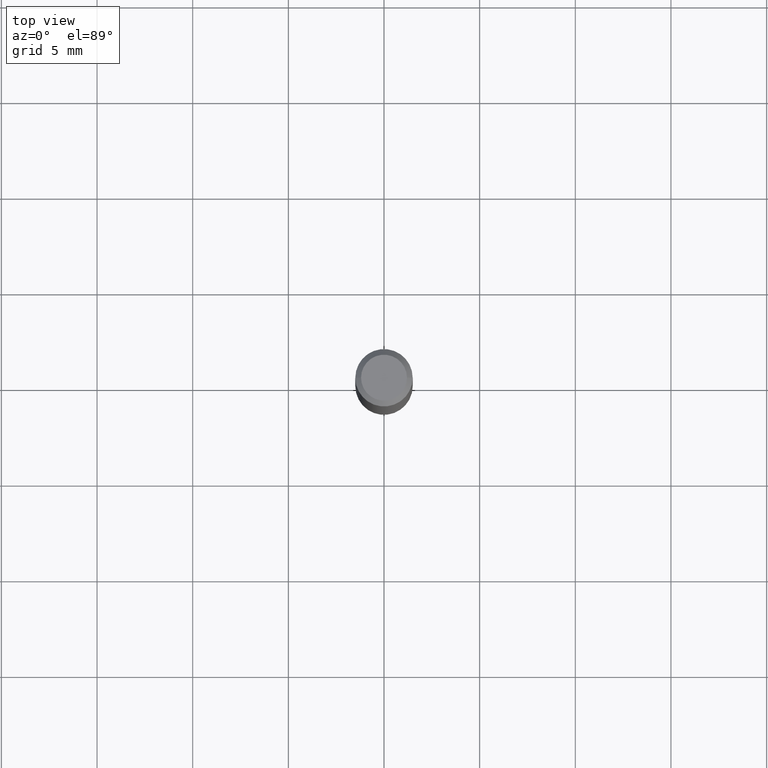
[diagram: clean part render]
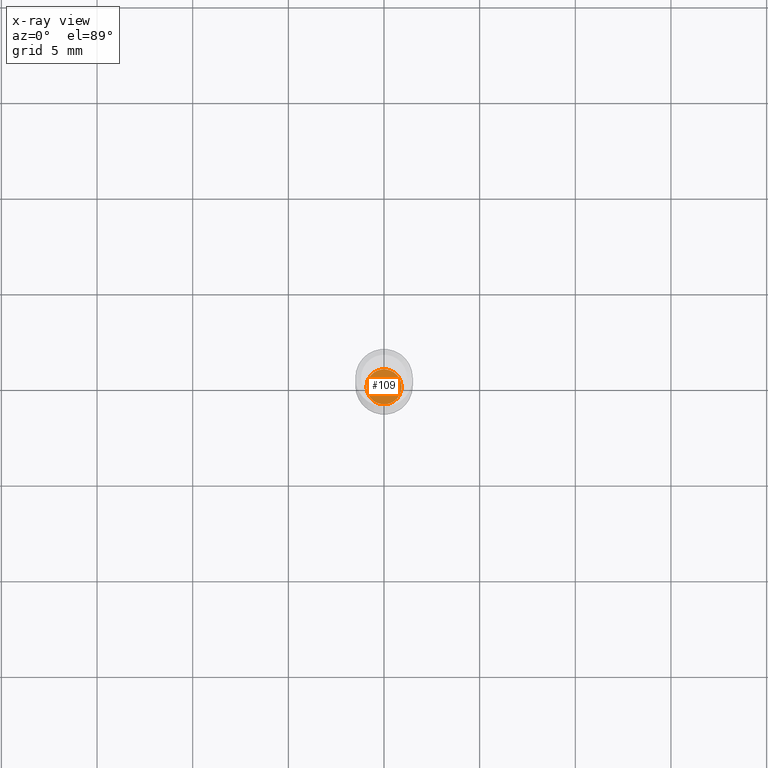
[diagram: x-ray — body ghosted, one internal face saturated and labeled with its STEP entity id]
A machine part, top view, then the same camera in x-ray: the body is ghosted and one INTERNAL B-rep face — a face not visible from any outside direction — is saturated and labeled: STEP entity #109.
In plain terms, the highlighted planar face has unit normal (-0, 0, 1).
Its self-contained STEP definition (entity closure, byte-faithful):
#5 = EDGE_CURVE ( 'NONE', #305, #262, #199, .T. ) ;
#48 = AXIS2_PLACEMENT_3D ( 'NONE', #98, #243, #401 ) ;
#51 = CARTESIAN_POINT ( 'NONE',  ( 0.03610000000000000014, -4.073511278028297355E-15, -1.094499999999999806 ) ) ;
#64 = EDGE_CURVE ( 'NONE', #262, #305, #267, .T. ) ;
#66 = FACE_OUTER_BOUND ( 'NONE', #142, .T. ) ;
#69 = DIRECTION ( 'NONE',  ( 1.000000000000000000, -6.982962677686265922E-15, 4.876176775795935793E-29 ) ) ;
#81 = AXIS2_PLACEMENT_3D ( 'NONE', #183, #379, #69 ) ;
#98 = CARTESIAN_POINT ( 'NONE',  ( 2.676565608369631794E-29, -3.821426325363822773E-15, -1.094499999999999806 ) ) ;
#109 = ADVANCED_FACE ( 'NONE', ( #66 ), #372, .F. ) ;
#142 = EDGE_LOOP ( 'NONE', ( #224, #344 ) ) ;
#176 = CARTESIAN_POINT ( 'NONE',  ( -0.03610000000000000014, -3.562271170580315256E-15, -1.094499999999999806 ) ) ;
#183 = CARTESIAN_POINT ( 'NONE',  ( 2.676565608369631794E-29, -3.821426325363822773E-15, -1.094499999999999806 ) ) ;
#199 = CIRCLE ( 'NONE', #476, 0.03610000000000000014 ) ;
#224 = ORIENTED_EDGE ( 'NONE', *, *, #64, .F. ) ;
#240 = DIRECTION ( 'NONE',  ( 1.000000000000000000, -6.982962677686270655E-15, 0.000000000000000000 ) ) ;
#243 = DIRECTION ( 'NONE',  ( -2.445468806185136597E-29, 3.491481338843145583E-15, 1.000000000000000000 ) ) ;
#262 = VERTEX_POINT ( 'NONE', #51 ) ;
#267 = CIRCLE ( 'NONE', #48, 0.03610000000000000014 ) ;
#305 = VERTEX_POINT ( 'NONE', #176 ) ;
#313 = CARTESIAN_POINT ( 'NONE',  ( 2.676565608369631794E-29, -3.821426325363822773E-15, -1.094499999999999806 ) ) ;
#344 = ORIENTED_EDGE ( 'NONE', *, *, #5, .F. ) ;
#372 = PLANE ( 'NONE',  #81 ) ;
#379 = DIRECTION ( 'NONE',  ( -2.438088387897960049E-29, 3.491481338843145188E-15, 1.000000000000000000 ) ) ;
#401 = DIRECTION ( 'NONE',  ( 1.000000000000000000, -6.982962677686270655E-15, 0.000000000000000000 ) ) ;
#472 = DIRECTION ( 'NONE',  ( -2.445468806185136597E-29, 3.491481338843145583E-15, 1.000000000000000000 ) ) ;
#476 = AXIS2_PLACEMENT_3D ( 'NONE', #313, #472, #240 ) ;